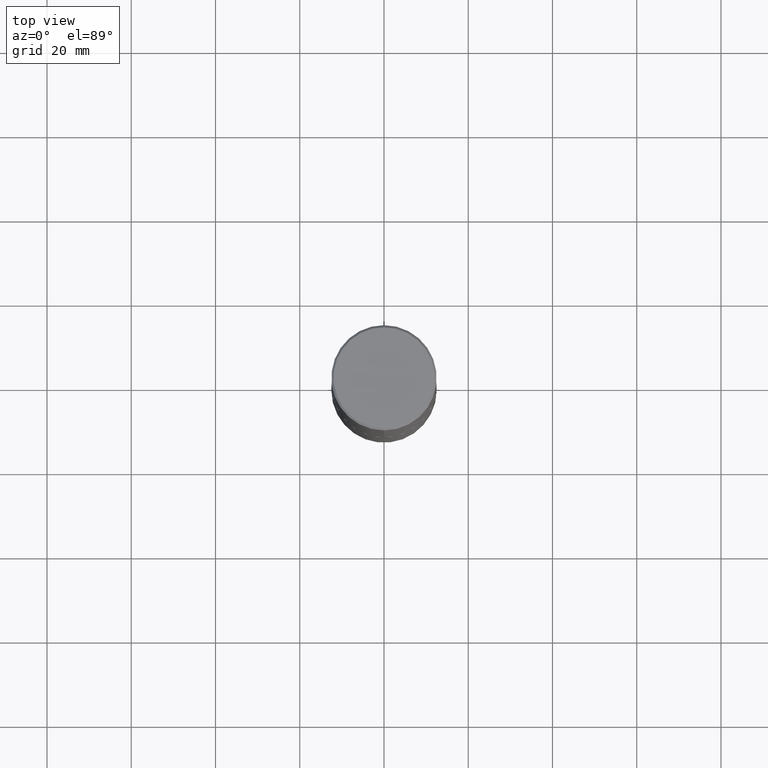
[diagram: clean part render]
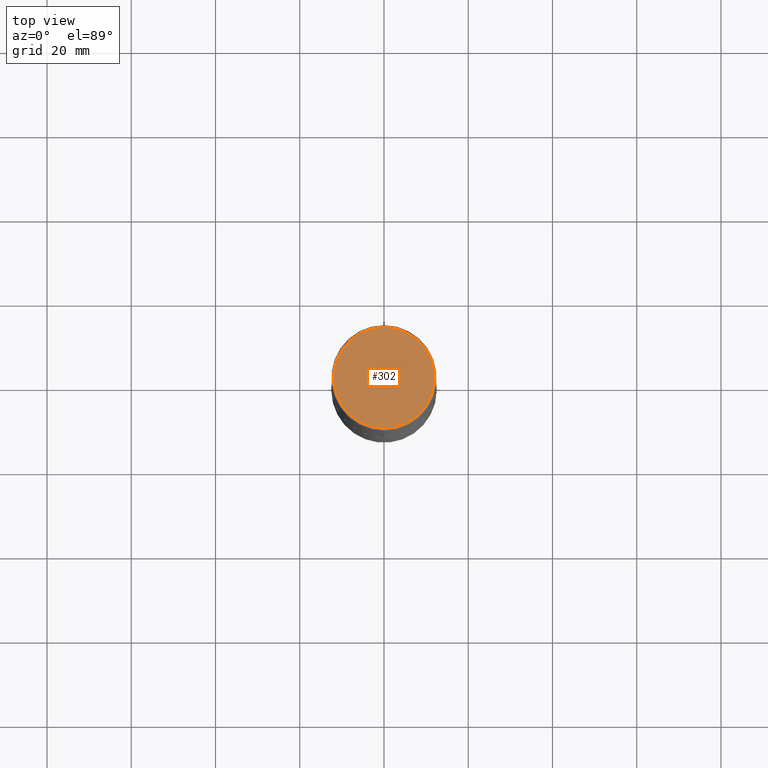
[diagram: same view with one face highlighted and labeled with its STEP entity id]
A machine part, top view. The second image highlights one B-rep face of the part: STEP entity #302.
In plain terms, the highlighted planar face has unit normal (0, -0, -1).
Its self-contained STEP definition (entity closure, byte-faithful):
#9 = ORIENTED_EDGE ( 'NONE', *, *, #235, .T. ) ;
#20 = FACE_OUTER_BOUND ( 'NONE', #371, .T. ) ;
#22 = CARTESIAN_POINT ( 'NONE',  ( 3.366835455046432084E-15, 0.4721499999999996255, -1.426540264649568516E-15 ) ) ;
#57 = CARTESIAN_POINT ( 'NONE',  ( -3.307789109625541747E-15, -0.4721499999999996255, 1.869778885941491673E-15 ) ) ;
#58 = VERTEX_POINT ( 'NONE', #22 ) ;
#70 = DIRECTION ( 'NONE',  ( -6.982962677686265922E-15, -1.000000000000000000, 3.490754157143982946E-15 ) ) ;
#91 = DIRECTION ( 'NONE',  ( 2.445976594451651392E-29, -3.490754157143982552E-15, -1.000000000000000000 ) ) ;
#116 = DIRECTION ( 'NONE',  ( 6.982962677686265922E-15, 1.000000000000000000, -3.490754157143982552E-15 ) ) ;
#134 = AXIS2_PLACEMENT_3D ( 'NONE', #182, #314, #343 ) ;
#142 = AXIS2_PLACEMENT_3D ( 'NONE', #388, #166, #70 ) ;
#166 = DIRECTION ( 'NONE',  ( -2.445976594451651952E-29, 3.490754157143982552E-15, 1.000000000000000000 ) ) ;
#182 = CARTESIAN_POINT ( 'NONE',  ( -5.420756467185317189E-45, 7.736185299407739239E-31, 2.216193106459615290E-16 ) ) ;
#205 = VERTEX_POINT ( 'NONE', #57 ) ;
#227 = CARTESIAN_POINT ( 'NONE',  ( 3.297005828269567997E-15, 0.4721499999999996255, -1.537349919972549256E-15 ) ) ;
#235 = EDGE_CURVE ( 'NONE', #58, #205, #273, .T. ) ;
#261 = PLANE ( 'NONE',  #414 ) ;
#273 = CIRCLE ( 'NONE', #134, 0.4721499999999996255 ) ;
#302 = ADVANCED_FACE ( 'NONE', ( #20 ), #261, .F. ) ;
#314 = DIRECTION ( 'NONE',  ( -2.445976594451651952E-29, 3.490754157143982552E-15, 1.000000000000000000 ) ) ;
#343 = DIRECTION ( 'NONE',  ( -6.982962677686265922E-15, -1.000000000000000000, 3.490754157143982946E-15 ) ) ;
#363 = CIRCLE ( 'NONE', #142, 0.4721499999999996255 ) ;
#371 = EDGE_LOOP ( 'NONE', ( #9, #407 ) ) ;
#388 = CARTESIAN_POINT ( 'NONE',  ( -5.420756467185317189E-45, 7.736185299407739239E-31, 2.216193106459615290E-16 ) ) ;
#398 = EDGE_CURVE ( 'NONE', #205, #58, #363, .T. ) ;
#407 = ORIENTED_EDGE ( 'NONE', *, *, #398, .T. ) ;
#414 = AXIS2_PLACEMENT_3D ( 'NONE', #227, #91, #116 ) ;